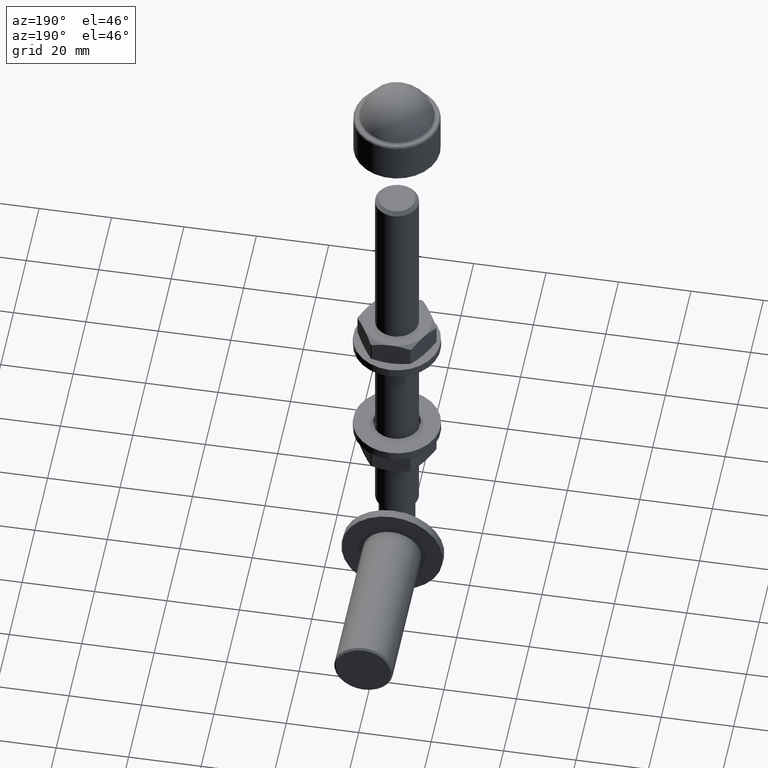
[diagram: clean part render]
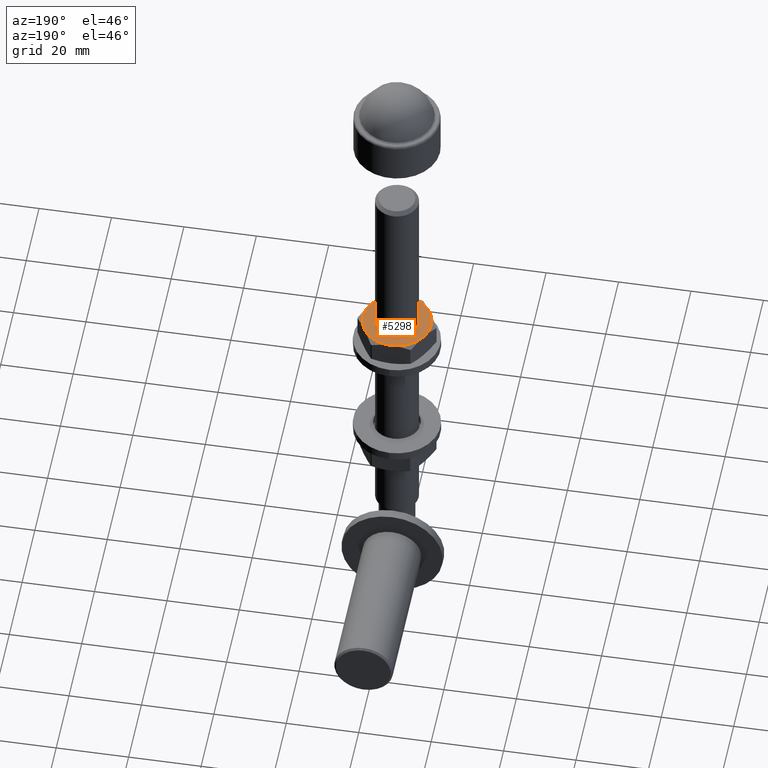
[diagram: same view with one face highlighted and labeled with its STEP entity id]
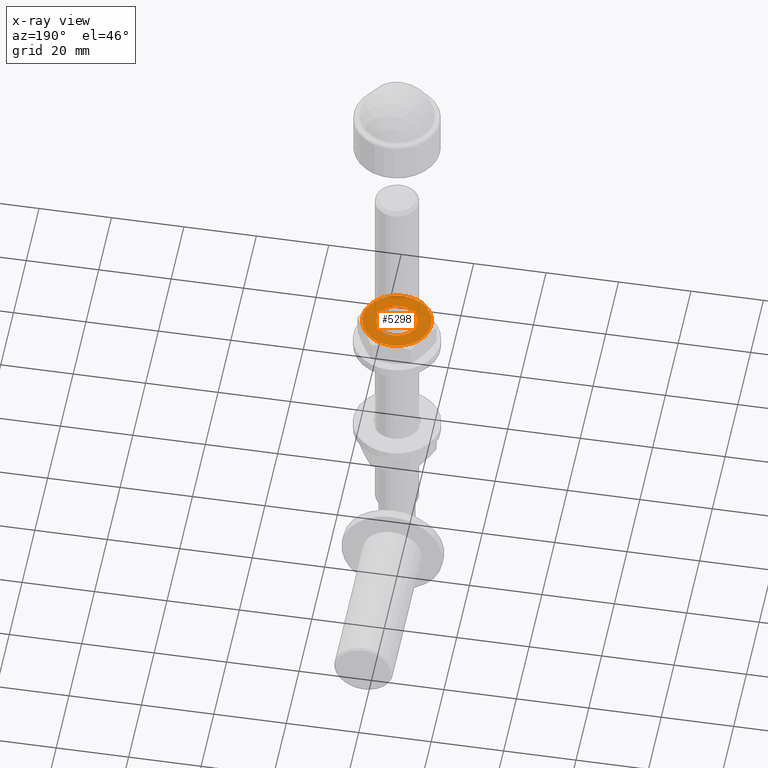
[diagram: x-ray of the same camera — body ghosted, the highlighted face saturated]
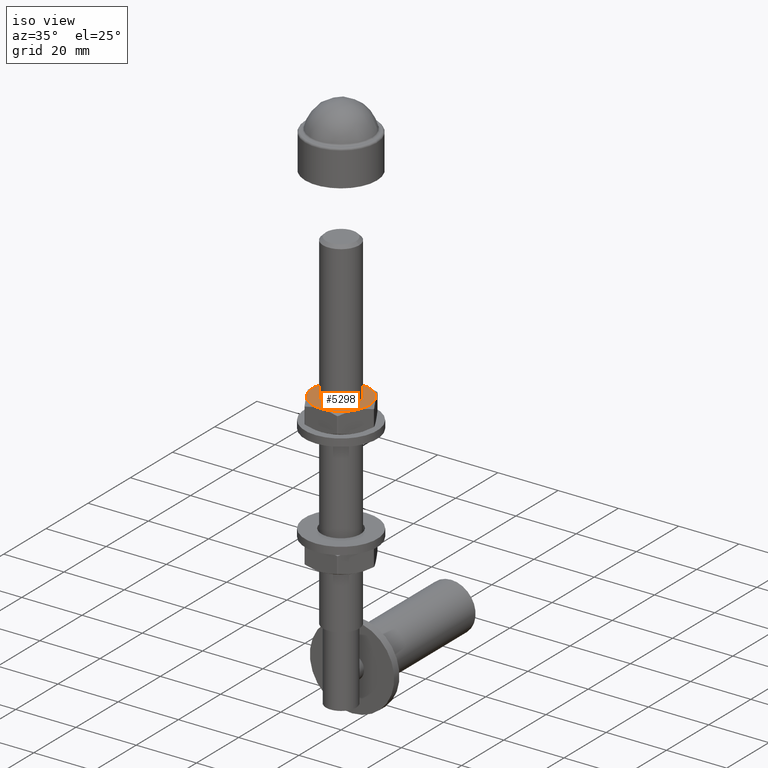
[diagram: same view with one face highlighted and labeled with its STEP entity id]
A machine part, auxiliary view. The second image highlights one B-rep face of the part: STEP entity #5298.
The next image is the same camera in x-ray: the body ghosted, the highlighted face saturated — about 2% of this face is hidden behind the body in this view.
A second angle (iso view) of the same face is appended — the face is thin or edge-on in the first view.
In plain terms, the highlighted planar face has unit normal (0, 0, 1).
Its self-contained STEP definition (entity closure, byte-faithful):
#141 = ORIENTED_EDGE ( 'NONE', *, *, #1763, .F. ) ;
#344 = ORIENTED_EDGE ( 'NONE', *, *, #14343, .F. ) ;
#467 = AXIS2_PLACEMENT_3D ( 'NONE', #13513, #14475, #6527 ) ;
#554 = DIRECTION ( 'NONE',  ( 0.000000000000000000, 0.000000000000000000, -1.000000000000000000 ) ) ;
#798 = CIRCLE ( 'NONE', #3741, 9.499999999999998224 ) ;
#992 = CIRCLE ( 'NONE', #467, 9.499999999999998224 ) ;
#1017 = ORIENTED_EDGE ( 'NONE', *, *, #13162, .F. ) ;
#1154 = DIRECTION ( 'NONE',  ( 0.000000000000000000, -0.000000000000000000, 1.000000000000000000 ) ) ;
#1250 = AXIS2_PLACEMENT_3D ( 'NONE', #9858, #7485, #1585 ) ;
#1585 = DIRECTION ( 'NONE',  ( 0.000000000000000000, 0.000000000000000000, 1.000000000000000000 ) ) ;
#1610 = EDGE_CURVE ( 'NONE', #13872, #6612, #9435, .T. ) ;
#1763 = EDGE_CURVE ( 'NONE', #7599, #12061, #13097, .T. ) ;
#2453 = ORIENTED_EDGE ( 'NONE', *, *, #13213, .T. ) ;
#2565 = AXIS2_PLACEMENT_3D ( 'NONE', #13615, #5356, #13524 ) ;
#3026 = DIRECTION ( 'NONE',  ( -0.000000000000000000, -1.000000000000000000, -0.000000000000000000 ) ) ;
#3408 = EDGE_CURVE ( 'NONE', #6612, #3415, #11977, .T. ) ;
#3415 = VERTEX_POINT ( 'NONE', #9855 ) ;
#3437 = PLANE ( 'NONE',  #12999 ) ;
#3568 = CIRCLE ( 'NONE', #1250, 5.600000000000000533 ) ;
#3741 = AXIS2_PLACEMENT_3D ( 'NONE', #6281, #13207, #13268 ) ;
#5298 = ADVANCED_FACE ( 'NONE', ( #13232, #12854 ), #3437, .T. ) ;
#5356 = DIRECTION ( 'NONE',  ( -0.000000000000000000, -1.000000000000000000, -0.000000000000000000 ) ) ;
#5682 = CARTESIAN_POINT ( 'NONE',  ( 0.000000000000000000, 3.500000000000000000, 9.499999999999998224 ) ) ;
#6281 = CARTESIAN_POINT ( 'NONE',  ( 0.000000000000000000, 3.500000000000000000, 0.000000000000000000 ) ) ;
#6282 = CIRCLE ( 'NONE', #11830, 9.499999999999998224 ) ;
#6365 = DIRECTION ( 'NONE',  ( -0.000000000000000000, -1.000000000000000000, -0.000000000000000000 ) ) ;
#6527 = DIRECTION ( 'NONE',  ( -3.552713678800500929E-15, 0.000000000000000000, 1.000000000000000000 ) ) ;
#6585 = CARTESIAN_POINT ( 'NONE',  ( 0.000000000000000000, 3.500000000000000000, 0.000000000000000000 ) ) ;
#6612 = VERTEX_POINT ( 'NONE', #14098 ) ;
#6708 = EDGE_CURVE ( 'NONE', #12061, #13872, #798, .T. ) ;
#6974 = ORIENTED_EDGE ( 'NONE', *, *, #6708, .F. ) ;
#7485 = DIRECTION ( 'NONE',  ( -0.000000000000000000, -1.000000000000000000, -0.000000000000000000 ) ) ;
#7599 = VERTEX_POINT ( 'NONE', #5682 ) ;
#8012 = DIRECTION ( 'NONE',  ( -0.000000000000000000, -1.000000000000000000, -0.000000000000000000 ) ) ;
#8052 = CARTESIAN_POINT ( 'NONE',  ( 0.000000000000000000, 3.500000000000000000, 0.000000000000000000 ) ) ;
#8116 = VERTEX_POINT ( 'NONE', #8311 ) ;
#8311 = CARTESIAN_POINT ( 'NONE',  ( 0.000000000000000000, 3.500000000000000000, 5.600000000000000533 ) ) ;
#8590 = CARTESIAN_POINT ( 'NONE',  ( 8.227241335952165002, 3.500000000000000000, 4.749999999999998224 ) ) ;
#8737 = CARTESIAN_POINT ( 'NONE',  ( -8.227241335952165002, 3.500000000000000000, 4.749999999999999112 ) ) ;
#9050 = VERTEX_POINT ( 'NONE', #8590 ) ;
#9217 = EDGE_LOOP ( 'NONE', ( #2453 ) ) ;
#9282 = CARTESIAN_POINT ( 'NONE',  ( -8.227241335952165002, 3.500000000000000000, -4.750000000000000000 ) ) ;
#9435 = CIRCLE ( 'NONE', #2565, 9.499999999999998224 ) ;
#9855 = CARTESIAN_POINT ( 'NONE',  ( 8.227241335952163226, 3.500000000000000000, -4.750000000000003553 ) ) ;
#9858 = CARTESIAN_POINT ( 'NONE',  ( 0.000000000000000000, 3.500000000000000000, 0.000000000000000000 ) ) ;
#11408 = EDGE_LOOP ( 'NONE', ( #141, #1017, #344, #11625, #11473, #6974 ) ) ;
#11473 = ORIENTED_EDGE ( 'NONE', *, *, #1610, .F. ) ;
#11502 = DIRECTION ( 'NONE',  ( 0.000000000000000000, 0.000000000000000000, 1.000000000000000000 ) ) ;
#11625 = ORIENTED_EDGE ( 'NONE', *, *, #3408, .F. ) ;
#11830 = AXIS2_PLACEMENT_3D ( 'NONE', #6585, #3026, #12254 ) ;
#11977 = CIRCLE ( 'NONE', #12615, 9.499999999999998224 ) ;
#12061 = VERTEX_POINT ( 'NONE', #8737 ) ;
#12150 = CARTESIAN_POINT ( 'NONE',  ( 0.000000000000000000, 3.500000000000000000, 0.000000000000000000 ) ) ;
#12254 = DIRECTION ( 'NONE',  ( 0.000000000000000000, 0.000000000000000000, 1.000000000000000000 ) ) ;
#12610 = DIRECTION ( 'NONE',  ( 0.000000000000000000, 1.000000000000000000, 0.000000000000000000 ) ) ;
#12615 = AXIS2_PLACEMENT_3D ( 'NONE', #12150, #6365, #554 ) ;
#12854 = FACE_OUTER_BOUND ( 'NONE', #11408, .T. ) ;
#12999 = AXIS2_PLACEMENT_3D ( 'NONE', #13999, #12610, #1154 ) ;
#13097 = CIRCLE ( 'NONE', #14423, 9.499999999999998224 ) ;
#13162 = EDGE_CURVE ( 'NONE', #9050, #7599, #992, .T. ) ;
#13207 = DIRECTION ( 'NONE',  ( -0.000000000000000000, -1.000000000000000000, -0.000000000000000000 ) ) ;
#13213 = EDGE_CURVE ( 'NONE', #8116, #8116, #3568, .T. ) ;
#13232 = FACE_BOUND ( 'NONE', #9217, .T. ) ;
#13268 = DIRECTION ( 'NONE',  ( 0.000000000000000000, 0.000000000000000000, 1.000000000000000000 ) ) ;
#13513 = CARTESIAN_POINT ( 'NONE',  ( 0.000000000000000000, 3.500000000000000000, 0.000000000000000000 ) ) ;
#13524 = DIRECTION ( 'NONE',  ( 1.776356839400250465E-15, 0.000000000000000000, 1.000000000000000000 ) ) ;
#13615 = CARTESIAN_POINT ( 'NONE',  ( 0.000000000000000000, 3.500000000000000000, 0.000000000000000000 ) ) ;
#13872 = VERTEX_POINT ( 'NONE', #9282 ) ;
#13999 = CARTESIAN_POINT ( 'NONE',  ( 0.000000000000000000, 3.500000000000000000, 0.000000000000000000 ) ) ;
#14098 = CARTESIAN_POINT ( 'NONE',  ( -1.502314598737159623E-15, 3.500000000000000000, -9.499999999999998224 ) ) ;
#14343 = EDGE_CURVE ( 'NONE', #3415, #9050, #6282, .T. ) ;
#14423 = AXIS2_PLACEMENT_3D ( 'NONE', #8052, #8012, #11502 ) ;
#14475 = DIRECTION ( 'NONE',  ( -0.000000000000000000, -1.000000000000000000, -0.000000000000000000 ) ) ;